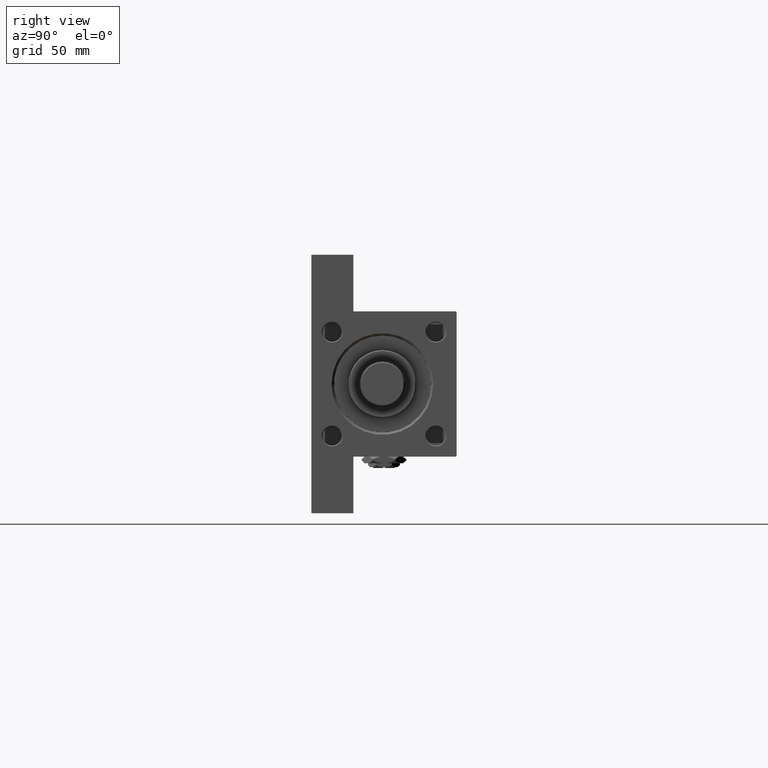
[diagram: clean part render]
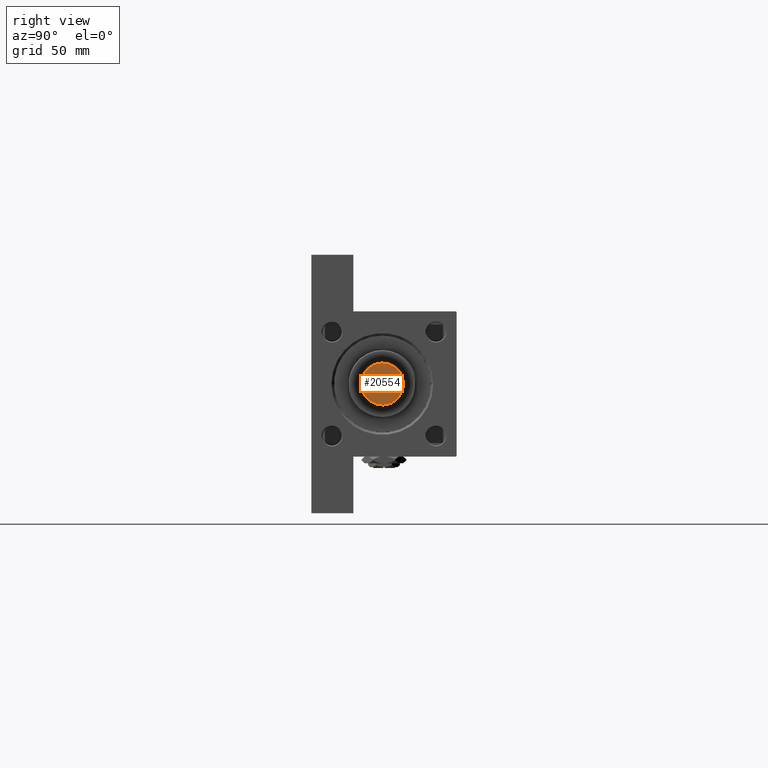
[diagram: same view with one face highlighted and labeled with its STEP entity id]
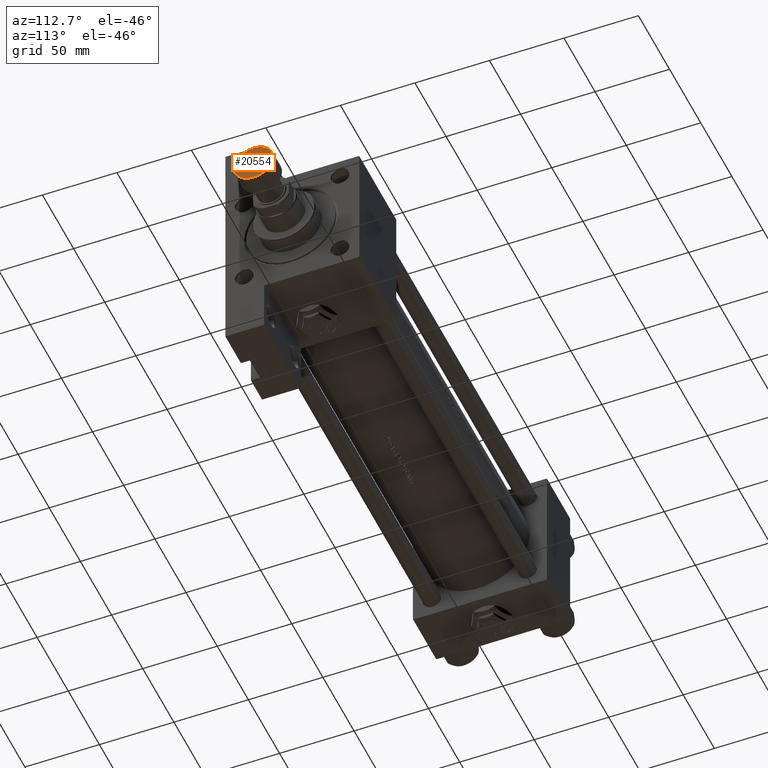
[diagram: same view with one face highlighted and labeled with its STEP entity id]
A machine part, right view. The second image highlights one B-rep face of the part: STEP entity #20554.
A second angle (auxiliary view) of the same face is appended — the face is thin or edge-on in the first view.
In plain terms, the highlighted planar face has unit normal (1, 0, 0).
Its self-contained STEP definition (entity closure, byte-faithful):
#1922 = EDGE_CURVE ( 'NONE', #8063, #48888, #12343, .T. ) ;
#4942 = CARTESIAN_POINT ( 'NONE',  ( 13.00000000000000000, 0.000000000000000000, 0.000000000000000000 ) ) ;
#6673 = AXIS2_PLACEMENT_3D ( 'NONE', #29619, #29111, #40546 ) ;
#8063 = VERTEX_POINT ( 'NONE', #29491 ) ;
#9010 = ORIENTED_EDGE ( 'NONE', *, *, #24786, .T. ) ;
#11602 = CARTESIAN_POINT ( 'NONE',  ( 0.000000000000000000, 0.000000000000000000, 0.000000000000000000 ) ) ;
#12343 = CIRCLE ( 'NONE', #6673, 13.00000000000000000 ) ;
#14208 = DIRECTION ( 'NONE',  ( 1.000000000000000000, 0.000000000000000000, -0.000000000000000000 ) ) ;
#14746 = ORIENTED_EDGE ( 'NONE', *, *, #1922, .T. ) ;
#20554 = ADVANCED_FACE ( 'NONE', ( #33496 ), #48990, .T. ) ;
#24786 = EDGE_CURVE ( 'NONE', #48888, #8063, #28799, .T. ) ;
#28799 = CIRCLE ( 'NONE', #47470, 13.00000000000000000 ) ;
#28936 = CARTESIAN_POINT ( 'NONE',  ( 0.000000000000000000, 0.000000000000000000, 0.000000000000000000 ) ) ;
#29111 = DIRECTION ( 'NONE',  ( 0.000000000000000000, 0.000000000000000000, 1.000000000000000000 ) ) ;
#29491 = CARTESIAN_POINT ( 'NONE',  ( -13.00000000000000000, 1.622657008870242882E-15, 0.000000000000000000 ) ) ;
#29619 = CARTESIAN_POINT ( 'NONE',  ( 0.000000000000000000, 0.000000000000000000, 0.000000000000000000 ) ) ;
#31144 = DIRECTION ( 'NONE',  ( 1.000000000000000000, 0.000000000000000000, 0.000000000000000000 ) ) ;
#32749 = DIRECTION ( 'NONE',  ( 0.000000000000000000, 0.000000000000000000, 1.000000000000000000 ) ) ;
#33496 = FACE_OUTER_BOUND ( 'NONE', #48155, .T. ) ;
#40546 = DIRECTION ( 'NONE',  ( 1.000000000000000000, 0.000000000000000000, 0.000000000000000000 ) ) ;
#41757 = AXIS2_PLACEMENT_3D ( 'NONE', #28936, #32749, #14208 ) ;
#46630 = DIRECTION ( 'NONE',  ( 0.000000000000000000, 0.000000000000000000, 1.000000000000000000 ) ) ;
#47470 = AXIS2_PLACEMENT_3D ( 'NONE', #11602, #46630, #31144 ) ;
#48155 = EDGE_LOOP ( 'NONE', ( #9010, #14746 ) ) ;
#48888 = VERTEX_POINT ( 'NONE', #4942 ) ;
#48990 = PLANE ( 'NONE',  #41757 ) ;